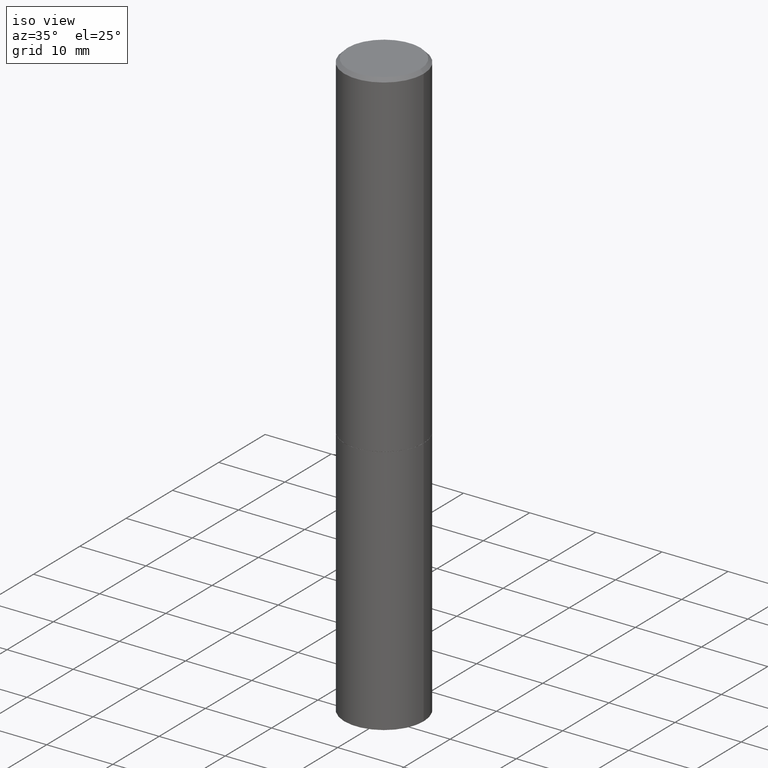
[diagram: clean part render]
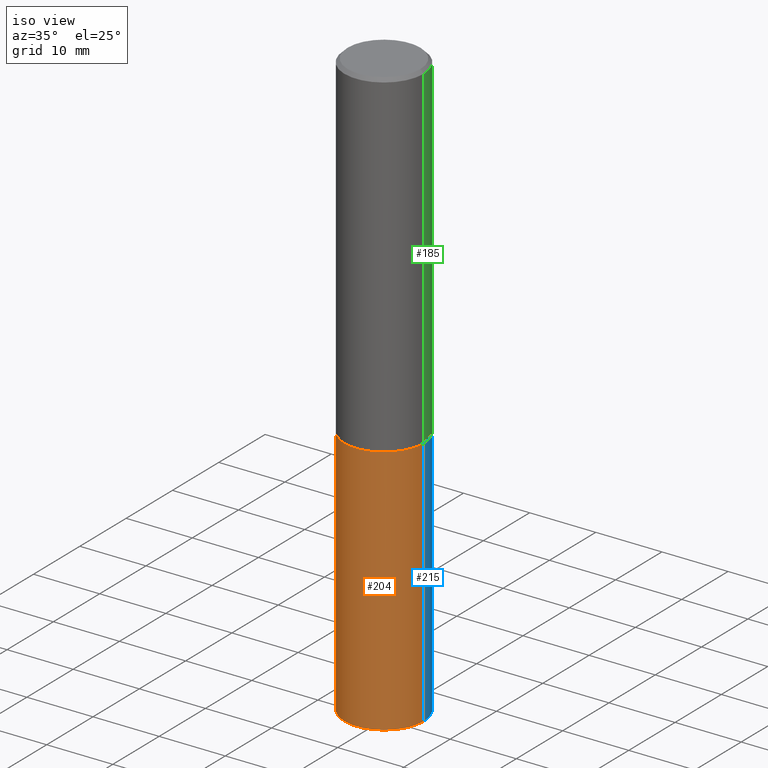
[diagram: same view with three faces highlighted in distinct colors, each labeled with its STEP entity id]
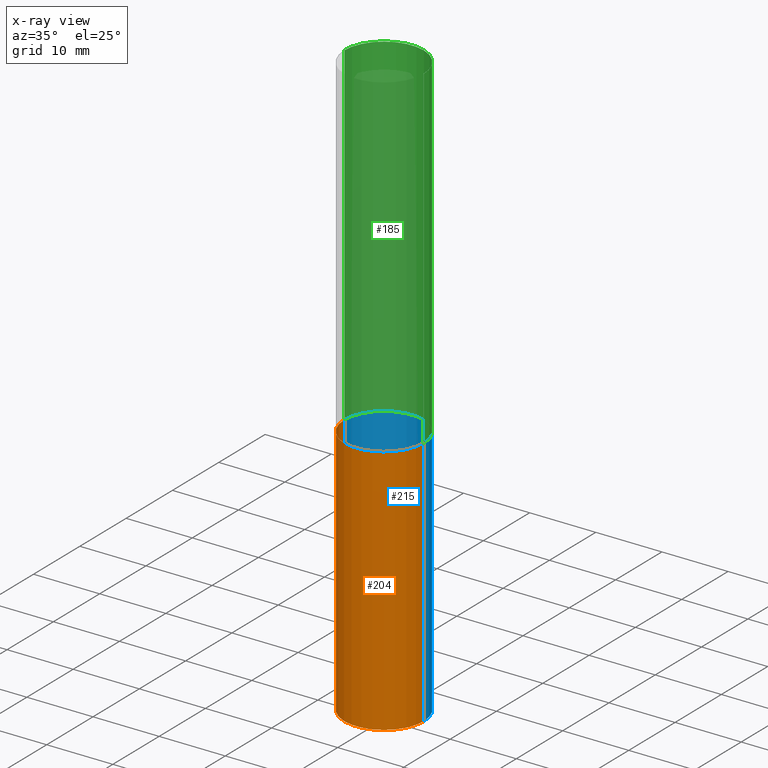
[diagram: x-ray of the same camera — body ghosted, the three highlighted faces saturated]
A machine part, iso view with three faces highlighted in distinct colors.
The next image is the same camera in x-ray (body ghosted, the three faces saturated) — at least one of them is partly hidden behind the body in this view.
Their STEP definitions:

[orange] entity #204 — the highlighted cylindrical surface (partial cylindrical patch) has radius 5.9995 mm, axis along (-0, 0, 1).
#4 = AXIS2_PLACEMENT_3D ( 'NONE', #177, #290, #34 ) ;
#12 = EDGE_CURVE ( 'NONE', #289, #127, #189, .T. ) ;
#14 = DIRECTION ( 'NONE',  ( 1.000000000000000000, -6.982962677686265133E-15, 0.000000000000000000 ) ) ;
#34 = DIRECTION ( 'NONE',  ( 1.000000000000000000, -6.982962677686266711E-15, 4.876176775795936353E-29 ) ) ;
#37 = CARTESIAN_POINT ( 'NONE',  ( 0.2361999999999999933, -1.649375784469496131E-15, 1.151752954443000088E-29 ) ) ;
#39 = CARTESIAN_POINT ( 'NONE',  ( 0.2361999999999999933, -1.388317724764199281E-14, -3.503899999999999793 ) ) ;
#55 = CARTESIAN_POINT ( 'NONE',  ( 4.910012269058516525E-29, -7.010196232129267410E-15, -2.007800000000000029 ) ) ;
#63 = DIRECTION ( 'NONE',  ( 1.000000000000000000, -6.982962677686269077E-15, 0.000000000000000000 ) ) ;
#65 = CYLINDRICAL_SURFACE ( 'NONE', #4, 0.2361999999999999933 ) ;
#92 = CARTESIAN_POINT ( 'NONE',  ( -0.2361999999999999933, -7.943696905785525451E-15, -3.503899999999999793 ) ) ;
#93 = AXIS2_PLACEMENT_3D ( 'NONE', #297, #270, #14 ) ;
#100 = CARTESIAN_POINT ( 'NONE',  ( -0.2361999999999999933, 1.678301941865356591E-15, -1.161852468318208757E-29 ) ) ;
#102 = EDGE_CURVE ( 'NONE', #286, #253, #308, .T. ) ;
#110 = EDGE_CURVE ( 'NONE', #286, #289, #131, .T. ) ;
#120 = DIRECTION ( 'NONE',  ( -2.445468806185136877E-29, 3.491481338843145188E-15, 1.000000000000000000 ) ) ;
#127 = VERTEX_POINT ( 'NONE', #208 ) ;
#131 = LINE ( 'NONE', #100, #353 ) ;
#174 = AXIS2_PLACEMENT_3D ( 'NONE', #55, #254, #63 ) ;
#175 = FACE_OUTER_BOUND ( 'NONE', #348, .T. ) ;
#177 = CARTESIAN_POINT ( 'NONE',  ( 0.000000000000000000, 0.000000000000000000, 0.000000000000000000 ) ) ;
#187 = ORIENTED_EDGE ( 'NONE', *, *, #110, .F. ) ;
#189 = CIRCLE ( 'NONE', #174, 0.2361999999999999933 ) ;
#204 = ADVANCED_FACE ( 'NONE', ( #175 ), #65, .T. ) ;
#208 = CARTESIAN_POINT ( 'NONE',  ( 0.2361999999999999933, -8.659572016598763935E-15, -2.007800000000000029 ) ) ;
#224 = EDGE_CURVE ( 'NONE', #253, #127, #236, .T. ) ;
#236 = LINE ( 'NONE', #37, #237 ) ;
#237 = VECTOR ( 'NONE', #310, 39.37007874015748143 ) ;
#253 = VERTEX_POINT ( 'NONE', #39 ) ;
#254 = DIRECTION ( 'NONE',  ( -2.445468806185136597E-29, 3.491481338843145583E-15, 1.000000000000000000 ) ) ;
#268 = ORIENTED_EDGE ( 'NONE', *, *, #12, .F. ) ;
#270 = DIRECTION ( 'NONE',  ( -2.445468806185136597E-29, 3.491481338843145583E-15, 1.000000000000000000 ) ) ;
#272 = CARTESIAN_POINT ( 'NONE',  ( -0.2361999999999999933, -7.943696905785525451E-15, -2.007800000000000029 ) ) ;
#286 = VERTEX_POINT ( 'NONE', #92 ) ;
#289 = VERTEX_POINT ( 'NONE', #272 ) ;
#290 = DIRECTION ( 'NONE',  ( -2.445468806185136597E-29, 3.491481338843145583E-15, 1.000000000000000000 ) ) ;
#297 = CARTESIAN_POINT ( 'NONE',  ( 8.568678149992099474E-29, -1.223380146317249786E-14, -3.503899999999999793 ) ) ;
#308 = CIRCLE ( 'NONE', #93, 0.2361999999999999933 ) ;
#310 = DIRECTION ( 'NONE',  ( -2.445468806185136877E-29, 3.491481338843145188E-15, 1.000000000000000000 ) ) ;
#321 = ORIENTED_EDGE ( 'NONE', *, *, #224, .T. ) ;
#331 = ORIENTED_EDGE ( 'NONE', *, *, #102, .T. ) ;
#348 = EDGE_LOOP ( 'NONE', ( #187, #331, #321, #268 ) ) ;
#353 = VECTOR ( 'NONE', #120, 39.37007874015748143 ) ;

[blue] entity #215 — the highlighted cylindrical surface (partial cylindrical patch) has radius 5.9995 mm, axis along (-0, 0, 1).
#2 = FACE_OUTER_BOUND ( 'NONE', #48, .T. ) ;
#20 = CIRCLE ( 'NONE', #163, 0.2361999999999999933 ) ;
#37 = CARTESIAN_POINT ( 'NONE',  ( 0.2361999999999999933, -1.649375784469496131E-15, 1.151752954443000088E-29 ) ) ;
#38 = CIRCLE ( 'NONE', #171, 0.2361999999999999933 ) ;
#39 = CARTESIAN_POINT ( 'NONE',  ( 0.2361999999999999933, -1.388317724764199281E-14, -3.503899999999999793 ) ) ;
#48 = EDGE_LOOP ( 'NONE', ( #203, #79, #164, #60 ) ) ;
#60 = ORIENTED_EDGE ( 'NONE', *, *, #224, .F. ) ;
#66 = DIRECTION ( 'NONE',  ( -2.445468806185136597E-29, 3.491481338843145583E-15, 1.000000000000000000 ) ) ;
#79 = ORIENTED_EDGE ( 'NONE', *, *, #110, .T. ) ;
#92 = CARTESIAN_POINT ( 'NONE',  ( -0.2361999999999999933, -7.943696905785525451E-15, -3.503899999999999793 ) ) ;
#100 = CARTESIAN_POINT ( 'NONE',  ( -0.2361999999999999933, 1.678301941865356591E-15, -1.161852468318208757E-29 ) ) ;
#110 = EDGE_CURVE ( 'NONE', #286, #289, #131, .T. ) ;
#120 = DIRECTION ( 'NONE',  ( -2.445468806185136877E-29, 3.491481338843145188E-15, 1.000000000000000000 ) ) ;
#121 = CYLINDRICAL_SURFACE ( 'NONE', #176, 0.2361999999999999933 ) ;
#127 = VERTEX_POINT ( 'NONE', #208 ) ;
#131 = LINE ( 'NONE', #100, #353 ) ;
#135 = EDGE_CURVE ( 'NONE', #253, #286, #20, .T. ) ;
#163 = AXIS2_PLACEMENT_3D ( 'NONE', #341, #287, #312 ) ;
#164 = ORIENTED_EDGE ( 'NONE', *, *, #339, .F. ) ;
#171 = AXIS2_PLACEMENT_3D ( 'NONE', #220, #66, #248 ) ;
#176 = AXIS2_PLACEMENT_3D ( 'NONE', #202, #238, #261 ) ;
#202 = CARTESIAN_POINT ( 'NONE',  ( 0.000000000000000000, 0.000000000000000000, 0.000000000000000000 ) ) ;
#203 = ORIENTED_EDGE ( 'NONE', *, *, #135, .T. ) ;
#208 = CARTESIAN_POINT ( 'NONE',  ( 0.2361999999999999933, -8.659572016598763935E-15, -2.007800000000000029 ) ) ;
#215 = ADVANCED_FACE ( 'NONE', ( #2 ), #121, .T. ) ;
#220 = CARTESIAN_POINT ( 'NONE',  ( 4.910012269058516525E-29, -7.010196232129267410E-15, -2.007800000000000029 ) ) ;
#224 = EDGE_CURVE ( 'NONE', #253, #127, #236, .T. ) ;
#236 = LINE ( 'NONE', #37, #237 ) ;
#237 = VECTOR ( 'NONE', #310, 39.37007874015748143 ) ;
#238 = DIRECTION ( 'NONE',  ( -2.445468806185136597E-29, 3.491481338843145583E-15, 1.000000000000000000 ) ) ;
#248 = DIRECTION ( 'NONE',  ( 1.000000000000000000, -6.982962677686269077E-15, 0.000000000000000000 ) ) ;
#253 = VERTEX_POINT ( 'NONE', #39 ) ;
#261 = DIRECTION ( 'NONE',  ( 1.000000000000000000, -6.982962677686266711E-15, 4.876176775795936353E-29 ) ) ;
#272 = CARTESIAN_POINT ( 'NONE',  ( -0.2361999999999999933, -7.943696905785525451E-15, -2.007800000000000029 ) ) ;
#286 = VERTEX_POINT ( 'NONE', #92 ) ;
#287 = DIRECTION ( 'NONE',  ( -2.445468806185136597E-29, 3.491481338843145583E-15, 1.000000000000000000 ) ) ;
#289 = VERTEX_POINT ( 'NONE', #272 ) ;
#310 = DIRECTION ( 'NONE',  ( -2.445468806185136877E-29, 3.491481338843145188E-15, 1.000000000000000000 ) ) ;
#312 = DIRECTION ( 'NONE',  ( 1.000000000000000000, -6.982962677686265133E-15, 0.000000000000000000 ) ) ;
#339 = EDGE_CURVE ( 'NONE', #127, #289, #38, .T. ) ;
#341 = CARTESIAN_POINT ( 'NONE',  ( 8.568678149992099474E-29, -1.223380146317249786E-14, -3.503899999999999793 ) ) ;
#353 = VECTOR ( 'NONE', #120, 39.37007874015748143 ) ;

[green] entity #185 — the highlighted cylindrical surface (partial cylindrical patch) has radius 5.9995 mm, axis along (-0, 0, 1).
#6 = EDGE_CURVE ( 'NONE', #273, #118, #31, .T. ) ;
#7 = DIRECTION ( 'NONE',  ( 1.000000000000000000, -6.982962677686266711E-15, 0.000000000000000000 ) ) ;
#8 = DIRECTION ( 'NONE',  ( 1.000000000000000000, -6.982962677686265133E-15, 0.000000000000000000 ) ) ;
#13 = DIRECTION ( 'NONE',  ( -2.445468806185136597E-29, 3.491481338843145583E-15, 1.000000000000000000 ) ) ;
#15 = ORIENTED_EDGE ( 'NONE', *, *, #30, .T. ) ;
#17 = CARTESIAN_POINT ( 'NONE',  ( -0.2361999999999997990, 1.579546157692631649E-15, -0.02000000000000003164 ) ) ;
#30 = EDGE_CURVE ( 'NONE', #273, #153, #169, .T. ) ;
#31 = LINE ( 'NONE', #365, #200 ) ;
#35 = CARTESIAN_POINT ( 'NONE',  ( 4.907566800252331482E-29, -7.006704750790423614E-15, -2.006799999999999695 ) ) ;
#46 = CARTESIAN_POINT ( 'NONE',  ( -0.2361999999999998823, 1.678301941865355803E-15, -1.161852468318208336E-29 ) ) ;
#86 = CARTESIAN_POINT ( 'NONE',  ( 0.2361999999999997990, -1.690279253850497391E-15, -0.02000000000000003164 ) ) ;
#87 = CARTESIAN_POINT ( 'NONE',  ( 0.000000000000000000, 0.000000000000000000, 0.000000000000000000 ) ) ;
#96 = LINE ( 'NONE', #46, #165 ) ;
#98 = VERTEX_POINT ( 'NONE', #17 ) ;
#116 = CARTESIAN_POINT ( 'NONE',  ( -0.2361999999999999933, -1.859965246918285484E-15, -2.006799999999999695 ) ) ;
#118 = VERTEX_POINT ( 'NONE', #86 ) ;
#153 = VERTEX_POINT ( 'NONE', #116 ) ;
#165 = VECTOR ( 'NONE', #322, 39.37007874015748143 ) ;
#169 = CIRCLE ( 'NONE', #194, 0.2361999999999999933 ) ;
#185 = ADVANCED_FACE ( 'NONE', ( #340 ), #232, .T. ) ;
#191 = CARTESIAN_POINT ( 'NONE',  ( 0.2361999999999999933, -8.656080535259919350E-15, -2.006799999999999695 ) ) ;
#194 = AXIS2_PLACEMENT_3D ( 'NONE', #35, #316, #8 ) ;
#195 = DIRECTION ( 'NONE',  ( -2.445468806185136877E-29, 3.491481338843145188E-15, 1.000000000000000000 ) ) ;
#200 = VECTOR ( 'NONE', #195, 39.37007874015748143 ) ;
#206 = DIRECTION ( 'NONE',  ( 1.000000000000000000, -6.982962677686267499E-15, 4.876176775795936353E-29 ) ) ;
#222 = ORIENTED_EDGE ( 'NONE', *, *, #255, .F. ) ;
#232 = CYLINDRICAL_SURFACE ( 'NONE', #259, 0.2361999999999998823 ) ;
#255 = EDGE_CURVE ( 'NONE', #118, #98, #282, .T. ) ;
#259 = AXIS2_PLACEMENT_3D ( 'NONE', #87, #292, #206 ) ;
#269 = AXIS2_PLACEMENT_3D ( 'NONE', #294, #13, #7 ) ;
#273 = VERTEX_POINT ( 'NONE', #191 ) ;
#282 = CIRCLE ( 'NONE', #269, 0.2361999999999997990 ) ;
#292 = DIRECTION ( 'NONE',  ( -2.445468806185136597E-29, 3.491481338843145583E-15, 1.000000000000000000 ) ) ;
#294 = CARTESIAN_POINT ( 'NONE',  ( 4.890937612370280165E-31, -6.982962677686301470E-17, -0.02000000000000003164 ) ) ;
#316 = DIRECTION ( 'NONE',  ( -2.445468806185136597E-29, 3.491481338843145583E-15, 1.000000000000000000 ) ) ;
#322 = DIRECTION ( 'NONE',  ( -2.445468806185136877E-29, 3.491481338843145188E-15, 1.000000000000000000 ) ) ;
#330 = EDGE_LOOP ( 'NONE', ( #15, #352, #222, #356 ) ) ;
#332 = EDGE_CURVE ( 'NONE', #153, #98, #96, .T. ) ;
#340 = FACE_OUTER_BOUND ( 'NONE', #330, .T. ) ;
#352 = ORIENTED_EDGE ( 'NONE', *, *, #332, .T. ) ;
#356 = ORIENTED_EDGE ( 'NONE', *, *, #6, .F. ) ;
#365 = CARTESIAN_POINT ( 'NONE',  ( 0.2361999999999998823, -1.649375784469495539E-15, 1.151752954442999528E-29 ) ) ;